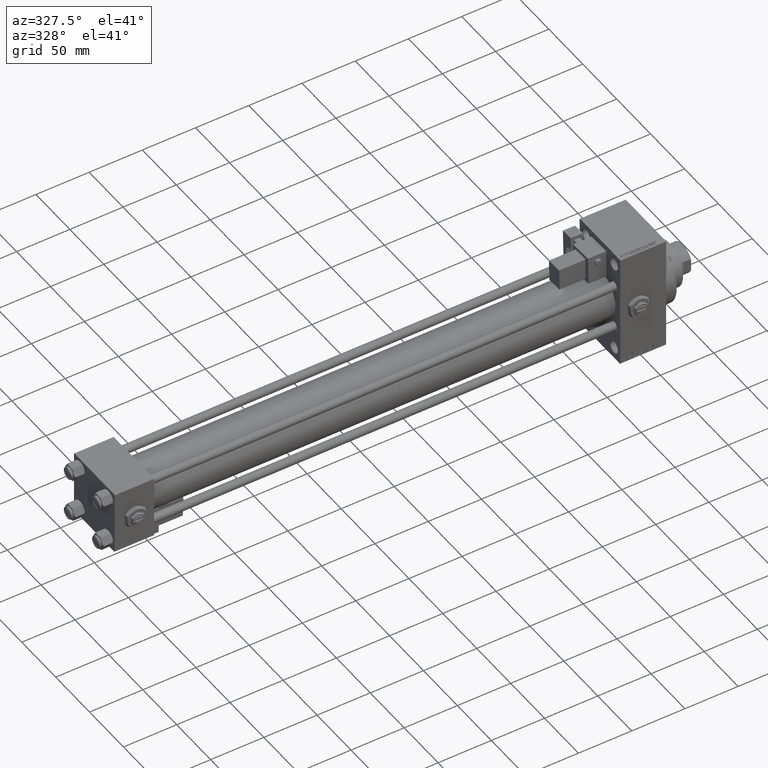
[diagram: clean part render]
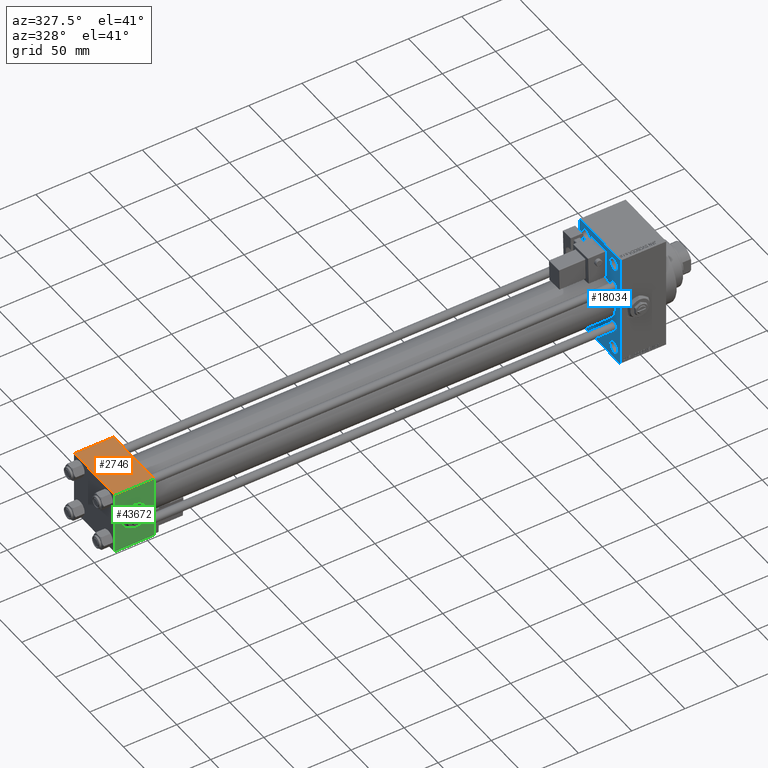
[diagram: same view with three faces highlighted in distinct colors, each labeled with its STEP entity id]
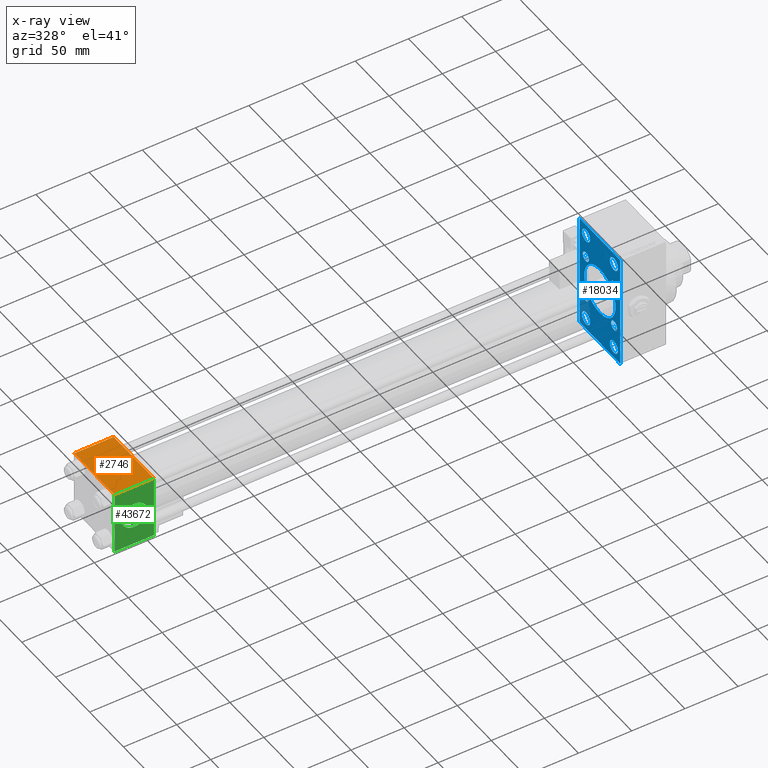
[diagram: x-ray of the same camera — body ghosted, the three highlighted faces saturated]
A machine part, auxiliary view with three faces highlighted in distinct colors.
The next image is the same camera in x-ray (body ghosted, the three faces saturated) — at least one of them is partly hidden behind the body in this view.
Their STEP definitions:

[orange] entity #2746 — the highlighted planar face has unit normal (0, 0, -1).
#254 = DIRECTION ( 'NONE',  ( 0.000000000000000000, 1.000000000000000000, 1.156482317317871725E-16 ) ) ;
#370 = ORIENTED_EDGE ( 'NONE', *, *, #37250, .F. ) ;
#505 = PLANE ( 'NONE',  #4090 ) ;
#2201 = ORIENTED_EDGE ( 'NONE', *, *, #12830, .T. ) ;
#2235 = VECTOR ( 'NONE', #40499, 1000.000000000000000 ) ;
#2537 = CARTESIAN_POINT ( 'NONE',  ( 37.00000000000000000, -29.50000000000000000, 29.99999999999999289 ) ) ;
#2746 = ADVANCED_FACE ( 'NONE', ( #27591 ), #505, .F. ) ;
#4090 = AXIS2_PLACEMENT_3D ( 'NONE', #35923, #20039, #254 ) ;
#4142 = ORIENTED_EDGE ( 'NONE', *, *, #8268, .T. ) ;
#5446 = CARTESIAN_POINT ( 'NONE',  ( 0.000000000000000000, 29.49999999999999289, 30.00000000000000000 ) ) ;
#8051 = VERTEX_POINT ( 'NONE', #16625 ) ;
#8268 = EDGE_CURVE ( 'NONE', #25458, #17011, #10345, .T. ) ;
#10345 = LINE ( 'NONE', #2537, #38246 ) ;
#12830 = EDGE_CURVE ( 'NONE', #50228, #8051, #41380, .T. ) ;
#14474 = CARTESIAN_POINT ( 'NONE',  ( 37.00000000000000000, -29.49999999999998579, 29.99999999999999289 ) ) ;
#16625 = CARTESIAN_POINT ( 'NONE',  ( 0.000000000000000000, 29.49999999999999289, 30.00000000000000000 ) ) ;
#17011 = VERTEX_POINT ( 'NONE', #14474 ) ;
#17617 = CARTESIAN_POINT ( 'NONE',  ( 37.00000000000000000, 29.49999999999999289, 30.00000000000000000 ) ) ;
#20039 = DIRECTION ( 'NONE',  ( 0.000000000000000000, 1.156482317317871725E-16, -1.000000000000000000 ) ) ;
#23857 = LINE ( 'NONE', #24620, #2235 ) ;
#24194 = VECTOR ( 'NONE', #27816, 1000.000000000000000 ) ;
#24620 = CARTESIAN_POINT ( 'NONE',  ( 37.00000000000000000, 29.99999999999999289, 30.00000000000000000 ) ) ;
#25458 = VERTEX_POINT ( 'NONE', #38977 ) ;
#27591 = FACE_OUTER_BOUND ( 'NONE', #43717, .T. ) ;
#27816 = DIRECTION ( 'NONE',  ( 0.000000000000000000, -1.000000000000000000, -1.156482317317871725E-16 ) ) ;
#31975 = CARTESIAN_POINT ( 'NONE',  ( 0.000000000000000000, 29.99999999999999289, 30.00000000000000000 ) ) ;
#32232 = EDGE_CURVE ( 'NONE', #8051, #25458, #35114, .T. ) ;
#33303 = DIRECTION ( 'NONE',  ( -1.000000000000000000, 0.000000000000000000, 0.000000000000000000 ) ) ;
#35114 = LINE ( 'NONE', #31975, #24194 ) ;
#35923 = CARTESIAN_POINT ( 'NONE',  ( 37.00000000000000000, 29.99999999999999289, 30.00000000000000000 ) ) ;
#36162 = VECTOR ( 'NONE', #33303, 1000.000000000000000 ) ;
#37250 = EDGE_CURVE ( 'NONE', #50228, #17011, #23857, .T. ) ;
#38246 = VECTOR ( 'NONE', #42885, 1000.000000000000000 ) ;
#38977 = CARTESIAN_POINT ( 'NONE',  ( 0.000000000000000000, -29.49999999999998579, 29.99999999999999289 ) ) ;
#40499 = DIRECTION ( 'NONE',  ( 0.000000000000000000, -1.000000000000000000, -1.156482317317871725E-16 ) ) ;
#41380 = LINE ( 'NONE', #5446, #36162 ) ;
#42885 = DIRECTION ( 'NONE',  ( 1.000000000000000000, 0.000000000000000000, 0.000000000000000000 ) ) ;
#43717 = EDGE_LOOP ( 'NONE', ( #51189, #4142, #370, #2201 ) ) ;
#50228 = VERTEX_POINT ( 'NONE', #17617 ) ;
#51189 = ORIENTED_EDGE ( 'NONE', *, *, #32232, .T. ) ;

[blue] entity #18034 — the highlighted planar face has unit normal (-1, 0, 0).
#27 = AXIS2_PLACEMENT_3D ( 'NONE', #43613, #7931, #23819 ) ;
#37 = CARTESIAN_POINT ( 'NONE',  ( 475.0000000000000000, 20.50000000000000000, -49.49999999999977973 ) ) ;
#205 = CARTESIAN_POINT ( 'NONE',  ( 475.0000000000000000, 20.50000000000000000, 49.49999999999977973 ) ) ;
#588 = AXIS2_PLACEMENT_3D ( 'NONE', #44609, #39683, #875 ) ;
#590 = LINE ( 'NONE', #32349, #33009 ) ;
#674 = EDGE_LOOP ( 'NONE', ( #31323, #11307 ) ) ;
#793 = VECTOR ( 'NONE', #15045, 1000.000000000000000 ) ;
#875 = DIRECTION ( 'NONE',  ( 0.000000000000000000, 0.000000000000000000, 1.000000000000000000 ) ) ;
#1178 = CARTESIAN_POINT ( 'NONE',  ( 475.0000000000000000, -20.84999999999999076, -25.35000000000001208 ) ) ;
#1200 = PLANE ( 'NONE',  #28795 ) ;
#1743 = DIRECTION ( 'NONE',  ( 0.000000000000000000, -1.000000000000000000, 1.156482317317871478E-16 ) ) ;
#2250 = CARTESIAN_POINT ( 'NONE',  ( 475.0000000000000000, -20.50000000000000000, -43.50000000000000000 ) ) ;
#2804 = AXIS2_PLACEMENT_3D ( 'NONE', #21971, #42286, #30282 ) ;
#2824 = VERTEX_POINT ( 'NONE', #1178 ) ;
#3154 = EDGE_LOOP ( 'NONE', ( #47894, #41761 ) ) ;
#3291 = VERTEX_POINT ( 'NONE', #32087 ) ;
#3487 = ORIENTED_EDGE ( 'NONE', *, *, #12426, .T. ) ;
#3631 = CARTESIAN_POINT ( 'NONE',  ( 475.0000000000000000, -20.50000000000000000, 37.50000000000021316 ) ) ;
#3767 = CARTESIAN_POINT ( 'NONE',  ( 475.0000000000000000, -30.00000000000000000, 54.00000000000000000 ) ) ;
#3822 = FACE_BOUND ( 'NONE', #32432, .T. ) ;
#4233 = CARTESIAN_POINT ( 'NONE',  ( 475.0000000000000000, -20.84999999999999076, 20.85000000000000497 ) ) ;
#4386 = ORIENTED_EDGE ( 'NONE', *, *, #43121, .T. ) ;
#4391 = ORIENTED_EDGE ( 'NONE', *, *, #51039, .T. ) ;
#4453 = CARTESIAN_POINT ( 'NONE',  ( 475.0000000000000000, -20.50000000000000000, 43.50000000000000000 ) ) ;
#4540 = ORIENTED_EDGE ( 'NONE', *, *, #9140, .T. ) ;
#4750 = EDGE_CURVE ( 'NONE', #27572, #31989, #41579, .T. ) ;
#4773 = AXIS2_PLACEMENT_3D ( 'NONE', #43881, #7944, #19393 ) ;
#4828 = EDGE_LOOP ( 'NONE', ( #39023, #8349 ) ) ;
#4921 = VERTEX_POINT ( 'NONE', #14796 ) ;
#5014 = CIRCLE ( 'NONE', #27, 4.500000000000007105 ) ;
#5269 = CARTESIAN_POINT ( 'NONE',  ( 475.0000000000000000, 29.99999999999999645, -53.99999999999999289 ) ) ;
#5349 = DIRECTION ( 'NONE',  ( 0.000000000000000000, 0.000000000000000000, 1.000000000000000000 ) ) ;
#5710 = CARTESIAN_POINT ( 'NONE',  ( 475.0000000000000000, -20.84999999999999076, 25.35000000000001208 ) ) ;
#5896 = FACE_BOUND ( 'NONE', #4828, .T. ) ;
#6526 = DIRECTION ( 'NONE',  ( 0.000000000000000000, 0.000000000000000000, 1.000000000000000000 ) ) ;
#6588 = CARTESIAN_POINT ( 'NONE',  ( 475.0000000000000000, -41.99999999999843681, 42.00000000000279954 ) ) ;
#6616 = EDGE_LOOP ( 'NONE', ( #19108, #24779 ) ) ;
#6776 = EDGE_CURVE ( 'NONE', #30980, #3291, #23232, .T. ) ;
#6975 = LINE ( 'NONE', #39274, #28876 ) ;
#7486 = VECTOR ( 'NONE', #38151, 1000.000000000000000 ) ;
#7919 = CIRCLE ( 'NONE', #37012, 5.999999999999783284 ) ;
#7931 = DIRECTION ( 'NONE',  ( 1.000000000000000000, -0.000000000000000000, 0.000000000000000000 ) ) ;
#7944 = DIRECTION ( 'NONE',  ( 1.000000000000000000, 0.000000000000000000, 0.000000000000000000 ) ) ;
#8089 = CIRCLE ( 'NONE', #43864, 4.500000000000007105 ) ;
#8349 = ORIENTED_EDGE ( 'NONE', *, *, #38249, .T. ) ;
#8408 = ORIENTED_EDGE ( 'NONE', *, *, #18867, .T. ) ;
#8935 = CIRCLE ( 'NONE', #4773, 23.00000000000000000 ) ;
#9140 = EDGE_CURVE ( 'NONE', #48773, #26555, #42274, .T. ) ;
#9182 = CARTESIAN_POINT ( 'NONE',  ( 475.0000000000000000, 20.50000000000000000, -37.50000000000021316 ) ) ;
#9285 = CARTESIAN_POINT ( 'NONE',  ( 475.0000000000000000, 0.000000000000000000, 0.000000000000000000 ) ) ;
#9994 = EDGE_CURVE ( 'NONE', #15788, #20917, #18608, .T. ) ;
#10072 = CARTESIAN_POINT ( 'NONE',  ( 475.0000000000000000, 29.99999999999999645, 54.49999999999999289 ) ) ;
#10280 = DIRECTION ( 'NONE',  ( 1.000000000000000000, -0.000000000000000000, 0.000000000000000000 ) ) ;
#10314 = DIRECTION ( 'NONE',  ( 0.000000000000000000, 0.000000000000000000, -1.000000000000000000 ) ) ;
#10473 = AXIS2_PLACEMENT_3D ( 'NONE', #2250, #49904, #14235 ) ;
#10809 = EDGE_CURVE ( 'NONE', #40215, #46310, #17790, .T. ) ;
#11269 = CARTESIAN_POINT ( 'NONE',  ( 475.0000000000000000, 20.50000000000000000, 43.50000000000000000 ) ) ;
#11307 = ORIENTED_EDGE ( 'NONE', *, *, #21311, .T. ) ;
#11821 = ORIENTED_EDGE ( 'NONE', *, *, #14277, .T. ) ;
#12220 = CIRCLE ( 'NONE', #588, 5.999999999999783284 ) ;
#12293 = VERTEX_POINT ( 'NONE', #42023 ) ;
#12426 = EDGE_CURVE ( 'NONE', #29844, #19025, #7919, .T. ) ;
#12937 = DIRECTION ( 'NONE',  ( 0.000000000000000000, 0.000000000000000000, 1.000000000000000000 ) ) ;
#13058 = AXIS2_PLACEMENT_3D ( 'NONE', #41962, #42978, #6526 ) ;
#13810 = EDGE_LOOP ( 'NONE', ( #18172, #4391, #19830, #4540, #35104, #14627, #8408, #4386 ) ) ;
#13868 = VERTEX_POINT ( 'NONE', #5710 ) ;
#14235 = DIRECTION ( 'NONE',  ( 0.000000000000000000, 0.000000000000000000, 1.000000000000000000 ) ) ;
#14277 = EDGE_CURVE ( 'NONE', #4921, #19806, #28759, .T. ) ;
#14627 = ORIENTED_EDGE ( 'NONE', *, *, #39112, .T. ) ;
#14796 = CARTESIAN_POINT ( 'NONE',  ( 475.0000000000000000, -20.50000000000000000, -37.50000000000021316 ) ) ;
#15045 = DIRECTION ( 'NONE',  ( -0.000000000000000000, -0.7071067811865867636, -0.7071067811865081598 ) ) ;
#15242 = EDGE_CURVE ( 'NONE', #47992, #13868, #18782, .T. ) ;
#15478 = EDGE_CURVE ( 'NONE', #3291, #30980, #35330, .T. ) ;
#15788 = VERTEX_POINT ( 'NONE', #41637 ) ;
#15955 = DIRECTION ( 'NONE',  ( 0.000000000000000000, 0.000000000000000000, 1.000000000000000000 ) ) ;
#15993 = EDGE_LOOP ( 'NONE', ( #33732, #43711 ) ) ;
#16959 = EDGE_CURVE ( 'NONE', #31989, #27572, #42886, .T. ) ;
#17790 = CIRCLE ( 'NONE', #27760, 4.500000000000007105 ) ;
#18034 = ADVANCED_FACE ( 'NONE', ( #3822, #19706, #51482, #18102, #33485, #33738, #29819, #29058, #5896, #49373 ), #1200, .T. ) ;
#18102 = FACE_BOUND ( 'NONE', #44448, .T. ) ;
#18172 = ORIENTED_EDGE ( 'NONE', *, *, #30206, .T. ) ;
#18214 = CARTESIAN_POINT ( 'NONE',  ( 475.0000000000000000, 20.50000000000000000, 37.50000000000021316 ) ) ;
#18608 = CIRCLE ( 'NONE', #2804, 4.500000000000007105 ) ;
#18782 = CIRCLE ( 'NONE', #27007, 4.500000000000007105 ) ;
#18867 = EDGE_CURVE ( 'NONE', #37447, #49984, #21057, .T. ) ;
#19025 = VERTEX_POINT ( 'NONE', #205 ) ;
#19108 = ORIENTED_EDGE ( 'NONE', *, *, #23573, .T. ) ;
#19393 = DIRECTION ( 'NONE',  ( 0.000000000000000000, 0.000000000000000000, -1.000000000000000000 ) ) ;
#19473 = EDGE_CURVE ( 'NONE', #19806, #4921, #20529, .T. ) ;
#19706 = FACE_BOUND ( 'NONE', #23279, .T. ) ;
#19806 = VERTEX_POINT ( 'NONE', #40347 ) ;
#19830 = ORIENTED_EDGE ( 'NONE', *, *, #38658, .F. ) ;
#20114 = DIRECTION ( 'NONE',  ( 1.000000000000000000, -0.000000000000000000, 0.000000000000000000 ) ) ;
#20317 = EDGE_CURVE ( 'NONE', #19025, #29844, #12220, .T. ) ;
#20529 = CIRCLE ( 'NONE', #13058, 5.999999999999783284 ) ;
#20917 = VERTEX_POINT ( 'NONE', #23874 ) ;
#21040 = EDGE_LOOP ( 'NONE', ( #50598, #39620 ) ) ;
#21057 = LINE ( 'NONE', #41115, #48789 ) ;
#21311 = EDGE_CURVE ( 'NONE', #20917, #15788, #8089, .T. ) ;
#21339 = CARTESIAN_POINT ( 'NONE',  ( 475.0000000000000000, -2.602085213965210642E-15, 23.00000000000000000 ) ) ;
#21971 = CARTESIAN_POINT ( 'NONE',  ( 475.0000000000000000, 20.84999999999999787, -20.85000000000000142 ) ) ;
#22469 = DIRECTION ( 'NONE',  ( -0.000000000000000000, 0.7071067811865843211, 0.7071067811865108244 ) ) ;
#22523 = LINE ( 'NONE', #33222, #7486 ) ;
#22634 = VERTEX_POINT ( 'NONE', #43229 ) ;
#22673 = ORIENTED_EDGE ( 'NONE', *, *, #20317, .T. ) ;
#23232 = CIRCLE ( 'NONE', #47361, 5.999999999999783284 ) ;
#23270 = VERTEX_POINT ( 'NONE', #21339 ) ;
#23279 = EDGE_LOOP ( 'NONE', ( #11821, #48885 ) ) ;
#23573 = EDGE_CURVE ( 'NONE', #12293, #2824, #32326, .T. ) ;
#23819 = DIRECTION ( 'NONE',  ( 0.000000000000000000, 0.000000000000000000, 1.000000000000000000 ) ) ;
#23847 = CIRCLE ( 'NONE', #30460, 4.500000000000007105 ) ;
#23874 = CARTESIAN_POINT ( 'NONE',  ( 475.0000000000000000, 20.84999999999999787, -25.35000000000000853 ) ) ;
#24481 = CARTESIAN_POINT ( 'NONE',  ( 475.0000000000000000, 20.50000000000000000, -43.50000000000000000 ) ) ;
#24494 = DIRECTION ( 'NONE',  ( 0.000000000000000000, 0.000000000000000000, 1.000000000000000000 ) ) ;
#24779 = ORIENTED_EDGE ( 'NONE', *, *, #30329, .T. ) ;
#25053 = CARTESIAN_POINT ( 'NONE',  ( 475.0000000000000000, -20.84999999999999076, 20.85000000000000497 ) ) ;
#25167 = DIRECTION ( 'NONE',  ( -1.000000000000000000, 0.000000000000000000, -0.000000000000000000 ) ) ;
#26085 = LINE ( 'NONE', #37796, #38403 ) ;
#26447 = CARTESIAN_POINT ( 'NONE',  ( 475.0000000000000000, -2.602085213965210642E-15, 0.000000000000000000 ) ) ;
#26555 = VERTEX_POINT ( 'NONE', #50852 ) ;
#27007 = AXIS2_PLACEMENT_3D ( 'NONE', #4233, #35995, #31821 ) ;
#27549 = DIRECTION ( 'NONE',  ( 0.000000000000000000, 0.7071067811865867636, -0.7071067811865081598 ) ) ;
#27572 = VERTEX_POINT ( 'NONE', #9182 ) ;
#27630 = DIRECTION ( 'NONE',  ( 1.000000000000000000, -0.000000000000000000, 0.000000000000000000 ) ) ;
#27760 = AXIS2_PLACEMENT_3D ( 'NONE', #32735, #48617, #12937 ) ;
#28161 = AXIS2_PLACEMENT_3D ( 'NONE', #37104, #10280, #5349 ) ;
#28635 = DIRECTION ( 'NONE',  ( 0.000000000000000000, 0.000000000000000000, 1.000000000000000000 ) ) ;
#28687 = DIRECTION ( 'NONE',  ( 0.000000000000000000, 0.000000000000000000, 1.000000000000000000 ) ) ;
#28759 = CIRCLE ( 'NONE', #10473, 5.999999999999783284 ) ;
#28795 = AXIS2_PLACEMENT_3D ( 'NONE', #9285, #25167, #41828 ) ;
#28876 = VECTOR ( 'NONE', #27549, 1000.000000000000000 ) ;
#29058 = FACE_BOUND ( 'NONE', #6616, .T. ) ;
#29819 = FACE_BOUND ( 'NONE', #674, .T. ) ;
#29844 = VERTEX_POINT ( 'NONE', #18214 ) ;
#30008 = DIRECTION ( 'NONE',  ( 1.000000000000000000, -0.000000000000000000, 0.000000000000000000 ) ) ;
#30206 = EDGE_CURVE ( 'NONE', #22634, #36754, #22523, .T. ) ;
#30282 = DIRECTION ( 'NONE',  ( 0.000000000000000000, 0.000000000000000000, 1.000000000000000000 ) ) ;
#30296 = CARTESIAN_POINT ( 'NONE',  ( 475.0000000000000000, 29.99999999999999645, 53.99999999999999289 ) ) ;
#30329 = EDGE_CURVE ( 'NONE', #2824, #12293, #5014, .T. ) ;
#30460 = AXIS2_PLACEMENT_3D ( 'NONE', #25053, #20114, #28687 ) ;
#30686 = CIRCLE ( 'NONE', #43214, 23.00000000000000000 ) ;
#30708 = DIRECTION ( 'NONE',  ( 0.000000000000000000, 0.000000000000000000, 1.000000000000000000 ) ) ;
#30895 = VECTOR ( 'NONE', #22469, 1000.000000000000000 ) ;
#30980 = VERTEX_POINT ( 'NONE', #3631 ) ;
#31323 = ORIENTED_EDGE ( 'NONE', *, *, #9994, .T. ) ;
#31821 = DIRECTION ( 'NONE',  ( 0.000000000000000000, 0.000000000000000000, 1.000000000000000000 ) ) ;
#31846 = CARTESIAN_POINT ( 'NONE',  ( 475.0000000000000000, 2.146024240737016609E-16, -23.00000000000000000 ) ) ;
#31989 = VERTEX_POINT ( 'NONE', #37 ) ;
#32087 = CARTESIAN_POINT ( 'NONE',  ( 475.0000000000000000, -20.50000000000000000, 49.49999999999977973 ) ) ;
#32326 = CIRCLE ( 'NONE', #28161, 4.500000000000007105 ) ;
#32349 = CARTESIAN_POINT ( 'NONE',  ( 475.0000000000000000, -30.00000000000000000, 54.50000000000000000 ) ) ;
#32432 = EDGE_LOOP ( 'NONE', ( #42749, #38703 ) ) ;
#32725 = CARTESIAN_POINT ( 'NONE',  ( 475.0000000000000000, 20.50000000000000000, -43.50000000000000000 ) ) ;
#32735 = CARTESIAN_POINT ( 'NONE',  ( 475.0000000000000000, 20.84999999999999787, 20.85000000000000142 ) ) ;
#33009 = VECTOR ( 'NONE', #48493, 1000.000000000000000 ) ;
#33222 = CARTESIAN_POINT ( 'NONE',  ( 475.0000000000000000, 29.99999999999999645, -54.49999999999999289 ) ) ;
#33261 = CARTESIAN_POINT ( 'NONE',  ( 475.0000000000000000, 20.84999999999999787, 20.85000000000000142 ) ) ;
#33485 = FACE_BOUND ( 'NONE', #3154, .T. ) ;
#33500 = DIRECTION ( 'NONE',  ( 1.000000000000000000, -0.000000000000000000, 0.000000000000000000 ) ) ;
#33732 = ORIENTED_EDGE ( 'NONE', *, *, #10809, .T. ) ;
#33738 = FACE_BOUND ( 'NONE', #15993, .T. ) ;
#33911 = AXIS2_PLACEMENT_3D ( 'NONE', #33261, #34287, #41336 ) ;
#34128 = CARTESIAN_POINT ( 'NONE',  ( 475.0000000000000000, -20.50000000000000000, 43.50000000000000000 ) ) ;
#34287 = DIRECTION ( 'NONE',  ( 1.000000000000000000, -0.000000000000000000, 0.000000000000000000 ) ) ;
#34582 = AXIS2_PLACEMENT_3D ( 'NONE', #34128, #51033, #30708 ) ;
#35104 = ORIENTED_EDGE ( 'NONE', *, *, #50216, .F. ) ;
#35229 = CARTESIAN_POINT ( 'NONE',  ( 475.0000000000000000, 20.84999999999999787, 25.35000000000000853 ) ) ;
#35330 = CIRCLE ( 'NONE', #34582, 5.999999999999783284 ) ;
#35623 = CARTESIAN_POINT ( 'NONE',  ( 475.0000000000000000, -29.49999999999994671, -54.50000000000000000 ) ) ;
#35995 = DIRECTION ( 'NONE',  ( 1.000000000000000000, -0.000000000000000000, 0.000000000000000000 ) ) ;
#36586 = AXIS2_PLACEMENT_3D ( 'NONE', #24481, #44022, #28635 ) ;
#36754 = VERTEX_POINT ( 'NONE', #35623 ) ;
#36944 = DIRECTION ( 'NONE',  ( 0.000000000000000000, 0.000000000000000000, -1.000000000000000000 ) ) ;
#37012 = AXIS2_PLACEMENT_3D ( 'NONE', #11269, #43041, #15955 ) ;
#37104 = CARTESIAN_POINT ( 'NONE',  ( 475.0000000000000000, -20.84999999999999076, -20.85000000000000497 ) ) ;
#37447 = VERTEX_POINT ( 'NONE', #30296 ) ;
#37775 = EDGE_CURVE ( 'NONE', #13868, #47992, #23847, .T. ) ;
#37796 = CARTESIAN_POINT ( 'NONE',  ( 475.0000000000000000, -41.99999999999884182, -42.00000000000204636 ) ) ;
#37897 = AXIS2_PLACEMENT_3D ( 'NONE', #32725, #33500, #49637 ) ;
#38151 = DIRECTION ( 'NONE',  ( 0.000000000000000000, -1.000000000000000000, -1.156482317317871478E-16 ) ) ;
#38167 = DIRECTION ( 'NONE',  ( 1.000000000000000000, 0.000000000000000000, 0.000000000000000000 ) ) ;
#38249 = EDGE_CURVE ( 'NONE', #39344, #23270, #8935, .T. ) ;
#38403 = VECTOR ( 'NONE', #49777, 1000.000000000000114 ) ;
#38658 = EDGE_CURVE ( 'NONE', #48773, #50348, #590, .T. ) ;
#38703 = ORIENTED_EDGE ( 'NONE', *, *, #6776, .T. ) ;
#39023 = ORIENTED_EDGE ( 'NONE', *, *, #43433, .T. ) ;
#39112 = EDGE_CURVE ( 'NONE', #43006, #37447, #6975, .T. ) ;
#39189 = VECTOR ( 'NONE', #1743, 1000.000000000000000 ) ;
#39274 = CARTESIAN_POINT ( 'NONE',  ( 475.0000000000000000, 41.99999999999832312, 42.00000000000298428 ) ) ;
#39344 = VERTEX_POINT ( 'NONE', #31846 ) ;
#39620 = ORIENTED_EDGE ( 'NONE', *, *, #16959, .T. ) ;
#39683 = DIRECTION ( 'NONE',  ( 1.000000000000000000, -0.000000000000000000, 0.000000000000000000 ) ) ;
#40000 = EDGE_CURVE ( 'NONE', #46310, #40215, #50509, .T. ) ;
#40215 = VERTEX_POINT ( 'NONE', #35229 ) ;
#40347 = CARTESIAN_POINT ( 'NONE',  ( 475.0000000000000000, -20.50000000000000000, -49.49999999999977973 ) ) ;
#41115 = CARTESIAN_POINT ( 'NONE',  ( 475.0000000000000000, 29.99999999999999645, 54.49999999999999289 ) ) ;
#41336 = DIRECTION ( 'NONE',  ( 0.000000000000000000, 0.000000000000000000, 1.000000000000000000 ) ) ;
#41579 = CIRCLE ( 'NONE', #36586, 5.999999999999783284 ) ;
#41637 = CARTESIAN_POINT ( 'NONE',  ( 475.0000000000000000, 20.84999999999999787, -16.34999999999999432 ) ) ;
#41641 = CARTESIAN_POINT ( 'NONE',  ( 475.0000000000000000, 29.49999999999993960, 54.49999999999999289 ) ) ;
#41761 = ORIENTED_EDGE ( 'NONE', *, *, #15242, .T. ) ;
#41828 = DIRECTION ( 'NONE',  ( -0.000000000000000000, 0.000000000000000000, 1.000000000000000000 ) ) ;
#41962 = CARTESIAN_POINT ( 'NONE',  ( 475.0000000000000000, -20.50000000000000000, -43.50000000000000000 ) ) ;
#42023 = CARTESIAN_POINT ( 'NONE',  ( 475.0000000000000000, -20.84999999999999076, -16.34999999999999787 ) ) ;
#42274 = LINE ( 'NONE', #6588, #30895 ) ;
#42286 = DIRECTION ( 'NONE',  ( 1.000000000000000000, -0.000000000000000000, 0.000000000000000000 ) ) ;
#42749 = ORIENTED_EDGE ( 'NONE', *, *, #15478, .T. ) ;
#42886 = CIRCLE ( 'NONE', #37897, 5.999999999999783284 ) ;
#42978 = DIRECTION ( 'NONE',  ( 1.000000000000000000, -0.000000000000000000, 0.000000000000000000 ) ) ;
#43006 = VERTEX_POINT ( 'NONE', #41641 ) ;
#43041 = DIRECTION ( 'NONE',  ( 1.000000000000000000, -0.000000000000000000, 0.000000000000000000 ) ) ;
#43121 = EDGE_CURVE ( 'NONE', #49984, #22634, #50455, .T. ) ;
#43214 = AXIS2_PLACEMENT_3D ( 'NONE', #26447, #38167, #10314 ) ;
#43229 = CARTESIAN_POINT ( 'NONE',  ( 475.0000000000000000, 29.49999999999993960, -54.49999999999999289 ) ) ;
#43433 = EDGE_CURVE ( 'NONE', #23270, #39344, #30686, .T. ) ;
#43613 = CARTESIAN_POINT ( 'NONE',  ( 475.0000000000000000, -20.84999999999999076, -20.85000000000000497 ) ) ;
#43711 = ORIENTED_EDGE ( 'NONE', *, *, #40000, .T. ) ;
#43864 = AXIS2_PLACEMENT_3D ( 'NONE', #49549, #30008, #50065 ) ;
#43881 = CARTESIAN_POINT ( 'NONE',  ( 475.0000000000000000, -2.602085213965210642E-15, 0.000000000000000000 ) ) ;
#44022 = DIRECTION ( 'NONE',  ( 1.000000000000000000, -0.000000000000000000, 0.000000000000000000 ) ) ;
#44448 = EDGE_LOOP ( 'NONE', ( #22673, #3487 ) ) ;
#44609 = CARTESIAN_POINT ( 'NONE',  ( 475.0000000000000000, 20.50000000000000000, 43.50000000000000000 ) ) ;
#46045 = CARTESIAN_POINT ( 'NONE',  ( 475.0000000000000000, 41.99999999999832312, -42.00000000000298428 ) ) ;
#46310 = VERTEX_POINT ( 'NONE', #51478 ) ;
#46502 = CARTESIAN_POINT ( 'NONE',  ( 475.0000000000000000, -30.00000000000000000, -53.99999999999998579 ) ) ;
#47361 = AXIS2_PLACEMENT_3D ( 'NONE', #4453, #27630, #24494 ) ;
#47894 = ORIENTED_EDGE ( 'NONE', *, *, #37775, .T. ) ;
#47992 = VERTEX_POINT ( 'NONE', #50260 ) ;
#48493 = DIRECTION ( 'NONE',  ( 0.000000000000000000, 0.000000000000000000, -1.000000000000000000 ) ) ;
#48617 = DIRECTION ( 'NONE',  ( 1.000000000000000000, -0.000000000000000000, 0.000000000000000000 ) ) ;
#48773 = VERTEX_POINT ( 'NONE', #3767 ) ;
#48789 = VECTOR ( 'NONE', #36944, 1000.000000000000000 ) ;
#48885 = ORIENTED_EDGE ( 'NONE', *, *, #19473, .T. ) ;
#49373 = FACE_OUTER_BOUND ( 'NONE', #13810, .T. ) ;
#49387 = LINE ( 'NONE', #10072, #39189 ) ;
#49549 = CARTESIAN_POINT ( 'NONE',  ( 475.0000000000000000, 20.84999999999999787, -20.85000000000000142 ) ) ;
#49637 = DIRECTION ( 'NONE',  ( 0.000000000000000000, 0.000000000000000000, 1.000000000000000000 ) ) ;
#49777 = DIRECTION ( 'NONE',  ( 0.000000000000000000, -0.7071067811865745512, 0.7071067811865204833 ) ) ;
#49904 = DIRECTION ( 'NONE',  ( 1.000000000000000000, -0.000000000000000000, 0.000000000000000000 ) ) ;
#49984 = VERTEX_POINT ( 'NONE', #5269 ) ;
#50065 = DIRECTION ( 'NONE',  ( 0.000000000000000000, 0.000000000000000000, 1.000000000000000000 ) ) ;
#50216 = EDGE_CURVE ( 'NONE', #43006, #26555, #49387, .T. ) ;
#50260 = CARTESIAN_POINT ( 'NONE',  ( 475.0000000000000000, -20.84999999999999076, 16.34999999999999787 ) ) ;
#50348 = VERTEX_POINT ( 'NONE', #46502 ) ;
#50455 = LINE ( 'NONE', #46045, #793 ) ;
#50509 = CIRCLE ( 'NONE', #33911, 4.500000000000007105 ) ;
#50598 = ORIENTED_EDGE ( 'NONE', *, *, #4750, .T. ) ;
#50852 = CARTESIAN_POINT ( 'NONE',  ( 475.0000000000000000, -29.49999999999994671, 54.50000000000000000 ) ) ;
#51033 = DIRECTION ( 'NONE',  ( 1.000000000000000000, -0.000000000000000000, 0.000000000000000000 ) ) ;
#51039 = EDGE_CURVE ( 'NONE', #36754, #50348, #26085, .T. ) ;
#51478 = CARTESIAN_POINT ( 'NONE',  ( 475.0000000000000000, 20.84999999999999787, 16.34999999999999432 ) ) ;
#51482 = FACE_BOUND ( 'NONE', #21040, .T. ) ;

[green] entity #43672 — the highlighted planar face has unit normal (0, 1, 0).
#167 = CARTESIAN_POINT ( 'NONE',  ( 18.50000000000000000, -30.00000000000000000, 0.000000000000000000 ) ) ;
#389 = CARTESIAN_POINT ( 'NONE',  ( 0.000000000000000000, -30.00000000000000000, -29.50000000000001776 ) ) ;
#2544 = CARTESIAN_POINT ( 'NONE',  ( 37.00000000000000000, -30.00000000000000000, 29.99999999999999289 ) ) ;
#2674 = EDGE_CURVE ( 'NONE', #8864, #19293, #4414, .T. ) ;
#2947 = EDGE_CURVE ( 'NONE', #6496, #8864, #49321, .T. ) ;
#3370 = ORIENTED_EDGE ( 'NONE', *, *, #28317, .F. ) ;
#4414 = LINE ( 'NONE', #47897, #28230 ) ;
#5354 = ORIENTED_EDGE ( 'NONE', *, *, #2947, .T. ) ;
#6496 = VERTEX_POINT ( 'NONE', #17507 ) ;
#7647 = LINE ( 'NONE', #27169, #22114 ) ;
#8294 = EDGE_LOOP ( 'NONE', ( #41490, #3370 ) ) ;
#8864 = VERTEX_POINT ( 'NONE', #389 ) ;
#8895 = CIRCLE ( 'NONE', #10531, 12.00000000000000178 ) ;
#10531 = AXIS2_PLACEMENT_3D ( 'NONE', #24875, #21215, #37102 ) ;
#10717 = CIRCLE ( 'NONE', #16558, 12.00000000000000178 ) ;
#10765 = DIRECTION ( 'NONE',  ( 0.000000000000000000, -0.000000000000000000, 1.000000000000000000 ) ) ;
#11251 = VERTEX_POINT ( 'NONE', #48945 ) ;
#13648 = FACE_BOUND ( 'NONE', #8294, .T. ) ;
#16037 = DIRECTION ( 'NONE',  ( 0.000000000000000000, 0.000000000000000000, -1.000000000000000000 ) ) ;
#16558 = AXIS2_PLACEMENT_3D ( 'NONE', #167, #24369, #16037 ) ;
#17507 = CARTESIAN_POINT ( 'NONE',  ( 0.000000000000000000, -30.00000000000000000, 29.49999999999999289 ) ) ;
#18401 = EDGE_LOOP ( 'NONE', ( #5354, #34119, #28052, #24946 ) ) ;
#19293 = VERTEX_POINT ( 'NONE', #19593 ) ;
#19593 = CARTESIAN_POINT ( 'NONE',  ( 37.00000000000000000, -30.00000000000000000, -29.50000000000001776 ) ) ;
#21215 = DIRECTION ( 'NONE',  ( 0.000000000000000000, -1.000000000000000000, -8.673617379884036705E-17 ) ) ;
#21543 = CARTESIAN_POINT ( 'NONE',  ( 37.00000000000000000, -30.00000000000000000, 29.49999999999999289 ) ) ;
#22113 = EDGE_CURVE ( 'NONE', #42663, #19293, #49936, .T. ) ;
#22114 = VECTOR ( 'NONE', #43059, 1000.000000000000000 ) ;
#24369 = DIRECTION ( 'NONE',  ( 0.000000000000000000, -1.000000000000000000, -8.673617379884036705E-17 ) ) ;
#24875 = CARTESIAN_POINT ( 'NONE',  ( 18.50000000000000000, -30.00000000000000000, 0.000000000000000000 ) ) ;
#24946 = ORIENTED_EDGE ( 'NONE', *, *, #36143, .T. ) ;
#25605 = VECTOR ( 'NONE', #42127, 1000.000000000000000 ) ;
#27169 = CARTESIAN_POINT ( 'NONE',  ( 37.00000000000000000, -30.00000000000000000, 29.49999999999999289 ) ) ;
#28052 = ORIENTED_EDGE ( 'NONE', *, *, #22113, .F. ) ;
#28230 = VECTOR ( 'NONE', #31475, 1000.000000000000000 ) ;
#28317 = EDGE_CURVE ( 'NONE', #11251, #47619, #10717, .T. ) ;
#29524 = FACE_OUTER_BOUND ( 'NONE', #18401, .T. ) ;
#31475 = DIRECTION ( 'NONE',  ( 1.000000000000000000, 0.000000000000000000, 0.000000000000000000 ) ) ;
#31555 = AXIS2_PLACEMENT_3D ( 'NONE', #41785, #34216, #10765 ) ;
#33680 = CARTESIAN_POINT ( 'NONE',  ( 18.50000000000000000, -30.00000000000000000, -12.00000000000000178 ) ) ;
#34119 = ORIENTED_EDGE ( 'NONE', *, *, #2674, .T. ) ;
#34216 = DIRECTION ( 'NONE',  ( -0.000000000000000000, 1.000000000000000000, 0.000000000000000000 ) ) ;
#36143 = EDGE_CURVE ( 'NONE', #42663, #6496, #7647, .T. ) ;
#37102 = DIRECTION ( 'NONE',  ( 0.000000000000000000, 0.000000000000000000, -1.000000000000000000 ) ) ;
#37341 = DIRECTION ( 'NONE',  ( 0.000000000000000000, 0.000000000000000000, -1.000000000000000000 ) ) ;
#37413 = EDGE_CURVE ( 'NONE', #47619, #11251, #8895, .T. ) ;
#40999 = CARTESIAN_POINT ( 'NONE',  ( 0.000000000000000000, -30.00000000000000000, 29.99999999999999289 ) ) ;
#41490 = ORIENTED_EDGE ( 'NONE', *, *, #37413, .F. ) ;
#41785 = CARTESIAN_POINT ( 'NONE',  ( 37.00000000000000000, -30.00000000000000000, 29.99999999999999289 ) ) ;
#42127 = DIRECTION ( 'NONE',  ( 0.000000000000000000, 0.000000000000000000, -1.000000000000000000 ) ) ;
#42284 = PLANE ( 'NONE',  #31555 ) ;
#42663 = VERTEX_POINT ( 'NONE', #21543 ) ;
#43059 = DIRECTION ( 'NONE',  ( -1.000000000000000000, 0.000000000000000000, 0.000000000000000000 ) ) ;
#43672 = ADVANCED_FACE ( 'NONE', ( #13648, #29524 ), #42284, .F. ) ;
#44030 = VECTOR ( 'NONE', #37341, 1000.000000000000000 ) ;
#47619 = VERTEX_POINT ( 'NONE', #33680 ) ;
#47897 = CARTESIAN_POINT ( 'NONE',  ( 37.00000000000000000, -30.00000000000000000, -29.50000000000001776 ) ) ;
#48945 = CARTESIAN_POINT ( 'NONE',  ( 18.50000000000000000, -30.00000000000000000, 12.00000000000000178 ) ) ;
#49321 = LINE ( 'NONE', #40999, #44030 ) ;
#49936 = LINE ( 'NONE', #2544, #25605 ) ;